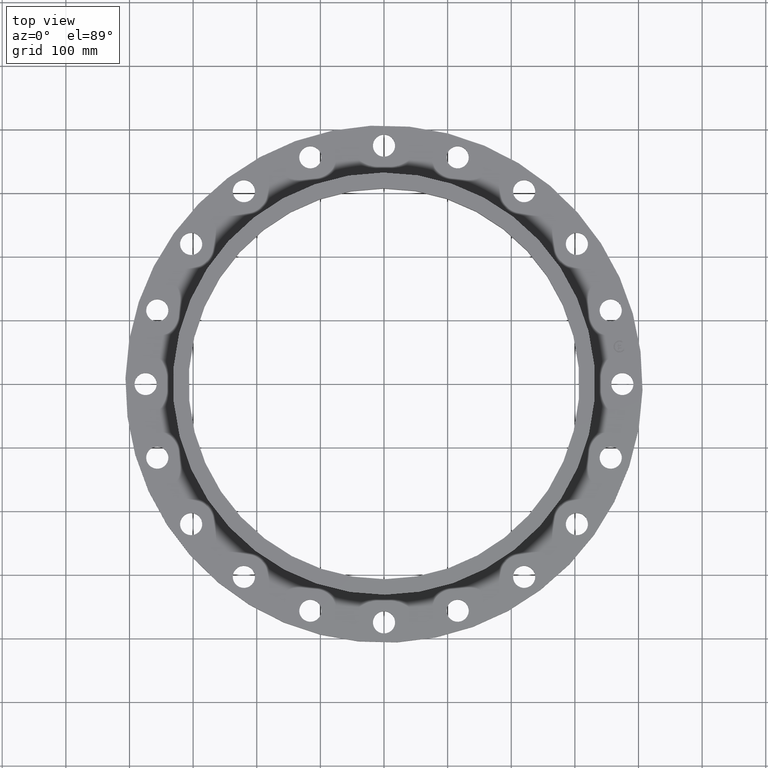
[diagram: clean part render]
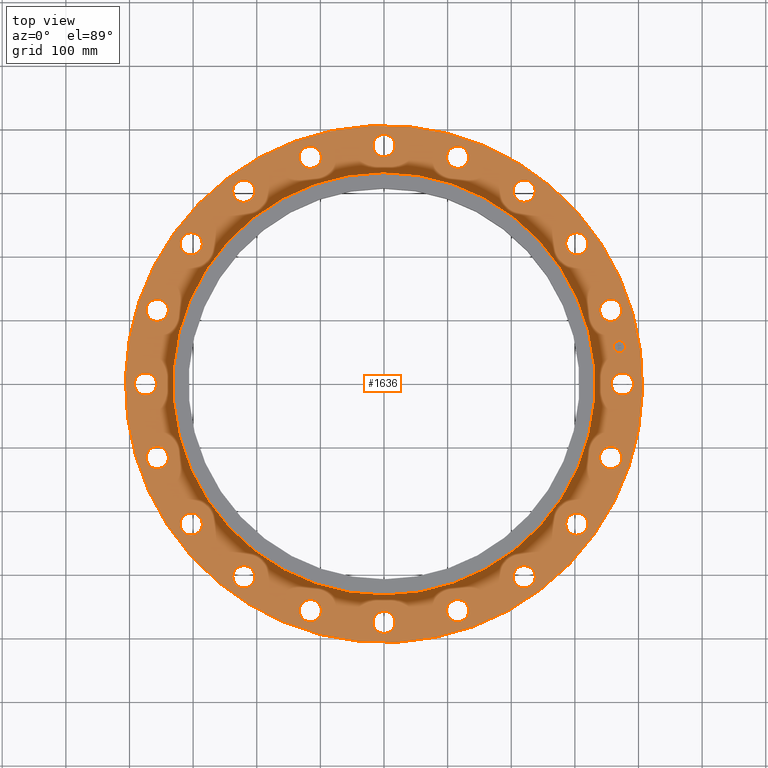
[diagram: same view with one face highlighted and labeled with its STEP entity id]
A machine part, top view. The second image highlights one B-rep face of the part: STEP entity #1636.
In plain terms, the highlighted planar face has unit normal (0, 0, 1).
Its self-contained STEP definition (entity closure, byte-faithful):
#65=AXIS2_PLACEMENT_3D('Circle Axis2P3D',#63,#64,$) ;
#82=AXIS2_PLACEMENT_3D('Circle Axis2P3D',#80,#81,$) ;
#108=AXIS2_PLACEMENT_3D('Circle Axis2P3D',#106,#107,$) ;
#134=AXIS2_PLACEMENT_3D('Circle Axis2P3D',#132,#133,$) ;
#326=AXIS2_PLACEMENT_3D('Circle Axis2P3D',#324,#325,$) ;
#338=AXIS2_PLACEMENT_3D('Circle Axis2P3D',#336,#337,$) ;
#729=AXIS2_PLACEMENT_3D('Circle Axis2P3D',#727,#728,$) ;
#741=AXIS2_PLACEMENT_3D('Circle Axis2P3D',#739,#740,$) ;
#772=AXIS2_PLACEMENT_3D('Circle Axis2P3D',#770,#771,$) ;
#784=AXIS2_PLACEMENT_3D('Circle Axis2P3D',#782,#783,$) ;
#815=AXIS2_PLACEMENT_3D('Circle Axis2P3D',#813,#814,$) ;
#827=AXIS2_PLACEMENT_3D('Circle Axis2P3D',#825,#826,$) ;
#858=AXIS2_PLACEMENT_3D('Circle Axis2P3D',#856,#857,$) ;
#870=AXIS2_PLACEMENT_3D('Circle Axis2P3D',#868,#869,$) ;
#901=AXIS2_PLACEMENT_3D('Circle Axis2P3D',#899,#900,$) ;
#913=AXIS2_PLACEMENT_3D('Circle Axis2P3D',#911,#912,$) ;
#944=AXIS2_PLACEMENT_3D('Circle Axis2P3D',#942,#943,$) ;
#956=AXIS2_PLACEMENT_3D('Circle Axis2P3D',#954,#955,$) ;
#987=AXIS2_PLACEMENT_3D('Circle Axis2P3D',#985,#986,$) ;
#999=AXIS2_PLACEMENT_3D('Circle Axis2P3D',#997,#998,$) ;
#1030=AXIS2_PLACEMENT_3D('Circle Axis2P3D',#1028,#1029,$) ;
#1042=AXIS2_PLACEMENT_3D('Circle Axis2P3D',#1040,#1041,$) ;
#1073=AXIS2_PLACEMENT_3D('Circle Axis2P3D',#1071,#1072,$) ;
#1085=AXIS2_PLACEMENT_3D('Circle Axis2P3D',#1083,#1084,$) ;
#1116=AXIS2_PLACEMENT_3D('Circle Axis2P3D',#1114,#1115,$) ;
#1128=AXIS2_PLACEMENT_3D('Circle Axis2P3D',#1126,#1127,$) ;
#1159=AXIS2_PLACEMENT_3D('Circle Axis2P3D',#1157,#1158,$) ;
#1171=AXIS2_PLACEMENT_3D('Circle Axis2P3D',#1169,#1170,$) ;
#1202=AXIS2_PLACEMENT_3D('Circle Axis2P3D',#1200,#1201,$) ;
#1214=AXIS2_PLACEMENT_3D('Circle Axis2P3D',#1212,#1213,$) ;
#1245=AXIS2_PLACEMENT_3D('Circle Axis2P3D',#1243,#1244,$) ;
#1257=AXIS2_PLACEMENT_3D('Circle Axis2P3D',#1255,#1256,$) ;
#1288=AXIS2_PLACEMENT_3D('Circle Axis2P3D',#1286,#1287,$) ;
#1300=AXIS2_PLACEMENT_3D('Circle Axis2P3D',#1298,#1299,$) ;
#1331=AXIS2_PLACEMENT_3D('Circle Axis2P3D',#1329,#1330,$) ;
#1343=AXIS2_PLACEMENT_3D('Circle Axis2P3D',#1341,#1342,$) ;
#1374=AXIS2_PLACEMENT_3D('Circle Axis2P3D',#1372,#1373,$) ;
#1386=AXIS2_PLACEMENT_3D('Circle Axis2P3D',#1384,#1385,$) ;
#1417=AXIS2_PLACEMENT_3D('Circle Axis2P3D',#1415,#1416,$) ;
#1429=AXIS2_PLACEMENT_3D('Circle Axis2P3D',#1427,#1428,$) ;
#1460=AXIS2_PLACEMENT_3D('Circle Axis2P3D',#1458,#1459,$) ;
#1472=AXIS2_PLACEMENT_3D('Circle Axis2P3D',#1470,#1471,$) ;
#1503=AXIS2_PLACEMENT_3D('Circle Axis2P3D',#1501,#1502,$) ;
#1515=AXIS2_PLACEMENT_3D('Circle Axis2P3D',#1513,#1514,$) ;
#1528=AXIS2_PLACEMENT_3D('Plane Axis2P3D',#1525,#1526,#1527) ;
#1620=AXIS2_PLACEMENT_3D('Circle Axis2P3D',#1618,#1619,$) ;
#1629=AXIS2_PLACEMENT_3D('Circle Axis2P3D',#1627,#1628,$) ;
#46=CARTESIAN_POINT('Vertex',(14.1466619888,0.329605057792,1.)) ;
#60=CARTESIAN_POINT('Vertex',(15.3533380114,-0.329605057792,1.)) ;
#63=CARTESIAN_POINT('Axis2P3D Location',(14.7500000001,0.,1.)) ;
#80=CARTESIAN_POINT('Axis2P3D Location',(14.7500000001,0.,1.)) ;
#103=CARTESIAN_POINT('Vertex',(-7.6708086177,14.0413209903,1.)) ;
#106=CARTESIAN_POINT('Axis2P3D Location',(0.,0.,1.)) ;
#110=CARTESIAN_POINT('Vertex',(7.6708086177,-14.0413209903,1.)) ;
#132=CARTESIAN_POINT('Axis2P3D Location',(0.,0.,1.)) ;
#314=CARTESIAN_POINT('Vertex',(-6.26249609804,11.4634222147,1.)) ;
#321=CARTESIAN_POINT('Vertex',(6.26249609804,-11.4634222147,1.)) ;
#324=CARTESIAN_POINT('Axis2P3D Location',(0.,0.,1.)) ;
#336=CARTESIAN_POINT('Axis2P3D Location',(0.,0.,1.)) ;
#717=CARTESIAN_POINT('Vertex',(13.3524215039,4.68503200622,1.)) ;
#724=CARTESIAN_POINT('Vertex',(14.7037457269,4.43096932788,1.)) ;
#727=CARTESIAN_POINT('Axis2P3D Location',(14.0280836154,4.55800066705,1.)) ;
#739=CARTESIAN_POINT('Axis2P3D Location',(14.0280836154,4.55800066705,1.)) ;
#760=CARTESIAN_POINT('Vertex',(11.2511529705,8.58185537934,1.)) ;
#767=CARTESIAN_POINT('Vertex',(12.6148483636,8.75780956335,1.)) ;
#770=CARTESIAN_POINT('Axis2P3D Location',(11.9330006671,8.66983247135,1.)) ;
#782=CARTESIAN_POINT('Axis2P3D Location',(11.9330006671,8.66983247135,1.)) ;
#803=CARTESIAN_POINT('Vertex',(8.04854319297,11.6386269546,1.)) ;
#810=CARTESIAN_POINT('Vertex',(9.29112174972,12.2273743795,1.)) ;
#813=CARTESIAN_POINT('Axis2P3D Location',(8.66983247135,11.9330006671,1.)) ;
#825=CARTESIAN_POINT('Axis2P3D Location',(8.66983247135,11.9330006671,1.)) ;
#846=CARTESIAN_POINT('Vertex',(4.05808593019,13.5561286325,1.)) ;
#853=CARTESIAN_POINT('Vertex',(5.05791540391,14.5000385983,1.)) ;
#856=CARTESIAN_POINT('Axis2P3D Location',(4.55800066705,14.0280836154,1.)) ;
#868=CARTESIAN_POINT('Axis2P3D Location',(4.55800066705,14.0280836154,1.)) ;
#889=CARTESIAN_POINT('Vertex',(-0.329605057792,14.1466619888,1.)) ;
#896=CARTESIAN_POINT('Vertex',(0.329605057792,15.3533380114,1.)) ;
#899=CARTESIAN_POINT('Axis2P3D Location',(4.17833493703E-015,14.7500000001,1.)) ;
#911=CARTESIAN_POINT('Axis2P3D Location',(4.17833493703E-015,14.7500000001,1.)) ;
#932=CARTESIAN_POINT('Vertex',(-4.68503200622,13.3524215039,1.)) ;
#939=CARTESIAN_POINT('Vertex',(-4.43096932788,14.7037457269,1.)) ;
#942=CARTESIAN_POINT('Axis2P3D Location',(-4.55800066705,14.0280836154,1.)) ;
#954=CARTESIAN_POINT('Axis2P3D Location',(-4.55800066705,14.0280836154,1.)) ;
#975=CARTESIAN_POINT('Vertex',(-8.58185537934,11.2511529705,1.)) ;
#982=CARTESIAN_POINT('Vertex',(-8.75780956335,12.6148483636,1.)) ;
#985=CARTESIAN_POINT('Axis2P3D Location',(-8.66983247135,11.9330006671,1.)) ;
#997=CARTESIAN_POINT('Axis2P3D Location',(-8.66983247135,11.9330006671,1.)) ;
#1018=CARTESIAN_POINT('Vertex',(-11.6386269546,8.04854319297,1.)) ;
#1025=CARTESIAN_POINT('Vertex',(-12.2273743795,9.29112174972,1.)) ;
#1028=CARTESIAN_POINT('Axis2P3D Location',(-11.9330006671,8.66983247135,1.)) ;
#1040=CARTESIAN_POINT('Axis2P3D Location',(-11.9330006671,8.66983247135,1.)) ;
#1061=CARTESIAN_POINT('Vertex',(-13.5561286325,4.05808593019,1.)) ;
#1068=CARTESIAN_POINT('Vertex',(-14.5000385983,5.05791540391,1.)) ;
#1071=CARTESIAN_POINT('Axis2P3D Location',(-14.0280836154,4.55800066705,1.)) ;
#1083=CARTESIAN_POINT('Axis2P3D Location',(-14.0280836154,4.55800066705,1.)) ;
#1104=CARTESIAN_POINT('Vertex',(-14.1466619888,-0.329605057792,1.)) ;
#1111=CARTESIAN_POINT('Vertex',(-15.3533380114,0.329605057792,1.)) ;
#1114=CARTESIAN_POINT('Axis2P3D Location',(-14.7500000001,8.35666987406E-015,1.)) ;
#1126=CARTESIAN_POINT('Axis2P3D Location',(-14.7500000001,8.35666987406E-015,1.)) ;
#1147=CARTESIAN_POINT('Vertex',(-13.3524215039,-4.68503200622,1.)) ;
#1154=CARTESIAN_POINT('Vertex',(-14.7037457269,-4.43096932788,1.)) ;
#1157=CARTESIAN_POINT('Axis2P3D Location',(-14.0280836154,-4.55800066705,1.)) ;
#1169=CARTESIAN_POINT('Axis2P3D Location',(-14.0280836154,-4.55800066705,1.)) ;
#1190=CARTESIAN_POINT('Vertex',(-11.2511529705,-8.58185537934,1.)) ;
#1197=CARTESIAN_POINT('Vertex',(-12.6148483636,-8.75780956335,1.)) ;
#1200=CARTESIAN_POINT('Axis2P3D Location',(-11.9330006671,-8.66983247135,1.)) ;
#1212=CARTESIAN_POINT('Axis2P3D Location',(-11.9330006671,-8.66983247135,1.)) ;
#1233=CARTESIAN_POINT('Vertex',(-8.04854319297,-11.6386269546,1.)) ;
#1240=CARTESIAN_POINT('Vertex',(-9.29112174972,-12.2273743795,1.)) ;
#1243=CARTESIAN_POINT('Axis2P3D Location',(-8.66983247135,-11.9330006671,1.)) ;
#1255=CARTESIAN_POINT('Axis2P3D Location',(-8.66983247135,-11.9330006671,1.)) ;
#1276=CARTESIAN_POINT('Vertex',(-4.05808593019,-13.5561286325,1.)) ;
#1283=CARTESIAN_POINT('Vertex',(-5.05791540391,-14.5000385983,1.)) ;
#1286=CARTESIAN_POINT('Axis2P3D Location',(-4.55800066705,-14.0280836154,1.)) ;
#1298=CARTESIAN_POINT('Axis2P3D Location',(-4.55800066705,-14.0280836154,1.)) ;
#1319=CARTESIAN_POINT('Vertex',(0.329605057792,-14.1466619888,1.)) ;
#1326=CARTESIAN_POINT('Vertex',(-0.329605057792,-15.3533380114,1.)) ;
#1329=CARTESIAN_POINT('Axis2P3D Location',(-1.58101627338E-014,-14.7500000001,1.)) ;
#1341=CARTESIAN_POINT('Axis2P3D Location',(-1.58101627338E-014,-14.7500000001,1.)) ;
#1362=CARTESIAN_POINT('Vertex',(4.68503200622,-13.3524215039,1.)) ;
#1369=CARTESIAN_POINT('Vertex',(4.43096932788,-14.7037457269,1.)) ;
#1372=CARTESIAN_POINT('Axis2P3D Location',(4.55800066705,-14.0280836154,1.)) ;
#1384=CARTESIAN_POINT('Axis2P3D Location',(4.55800066705,-14.0280836154,1.)) ;
#1405=CARTESIAN_POINT('Vertex',(8.58185537934,-11.2511529705,1.)) ;
#1412=CARTESIAN_POINT('Vertex',(8.75780956335,-12.6148483636,1.)) ;
#1415=CARTESIAN_POINT('Axis2P3D Location',(8.66983247135,-11.9330006671,1.)) ;
#1427=CARTESIAN_POINT('Axis2P3D Location',(8.66983247135,-11.9330006671,1.)) ;
#1448=CARTESIAN_POINT('Vertex',(11.6386269546,-8.04854319297,1.)) ;
#1455=CARTESIAN_POINT('Vertex',(12.2273743795,-9.29112174972,1.)) ;
#1458=CARTESIAN_POINT('Axis2P3D Location',(11.9330006671,-8.66983247135,1.)) ;
#1470=CARTESIAN_POINT('Axis2P3D Location',(11.9330006671,-8.66983247135,1.)) ;
#1491=CARTESIAN_POINT('Vertex',(13.5561286325,-4.05808593019,1.)) ;
#1498=CARTESIAN_POINT('Vertex',(14.5000385983,-5.05791540391,1.)) ;
#1501=CARTESIAN_POINT('Axis2P3D Location',(14.0280836154,-4.55800066705,1.)) ;
#1513=CARTESIAN_POINT('Axis2P3D Location',(14.0280836154,-4.55800066705,1.)) ;
#1525=CARTESIAN_POINT('Axis2P3D Location',(0.,13.0625000001,1.)) ;
#1618=CARTESIAN_POINT('Axis2P3D Location',(14.5684030238,2.30740835935,1.)) ;
#1622=CARTESIAN_POINT('Vertex',(14.5097400994,2.67779148708,1.)) ;
#1624=CARTESIAN_POINT('Vertex',(14.6270659482,1.93702523163,1.)) ;
#1627=CARTESIAN_POINT('Axis2P3D Location',(14.5684030238,2.30740835935,1.)) ;
#64=DIRECTION('Axis2P3D Direction',(0.,-0.,-0.0393700787402)) ;
#81=DIRECTION('Axis2P3D Direction',(0.,-0.,-0.0393700787402)) ;
#107=DIRECTION('Axis2P3D Direction',(0.,0.,0.0393700787402)) ;
#133=DIRECTION('Axis2P3D Direction',(0.,0.,0.0393700787402)) ;
#325=DIRECTION('Axis2P3D Direction',(0.,0.,0.0393700787402)) ;
#337=DIRECTION('Axis2P3D Direction',(0.,0.,0.0393700787402)) ;
#728=DIRECTION('Axis2P3D Direction',(0.,0.,-0.0393700787402)) ;
#740=DIRECTION('Axis2P3D Direction',(0.,0.,-0.0393700787402)) ;
#771=DIRECTION('Axis2P3D Direction',(0.,0.,-0.0393700787402)) ;
#783=DIRECTION('Axis2P3D Direction',(0.,0.,-0.0393700787402)) ;
#814=DIRECTION('Axis2P3D Direction',(0.,0.,-0.0393700787402)) ;
#826=DIRECTION('Axis2P3D Direction',(0.,0.,-0.0393700787402)) ;
#857=DIRECTION('Axis2P3D Direction',(0.,0.,-0.0393700787402)) ;
#869=DIRECTION('Axis2P3D Direction',(0.,0.,-0.0393700787402)) ;
#900=DIRECTION('Axis2P3D Direction',(0.,0.,-0.0393700787402)) ;
#912=DIRECTION('Axis2P3D Direction',(0.,0.,-0.0393700787402)) ;
#943=DIRECTION('Axis2P3D Direction',(0.,0.,-0.0393700787402)) ;
#955=DIRECTION('Axis2P3D Direction',(0.,0.,-0.0393700787402)) ;
#986=DIRECTION('Axis2P3D Direction',(0.,0.,-0.0393700787402)) ;
#998=DIRECTION('Axis2P3D Direction',(0.,0.,-0.0393700787402)) ;
#1029=DIRECTION('Axis2P3D Direction',(0.,0.,-0.0393700787402)) ;
#1041=DIRECTION('Axis2P3D Direction',(0.,0.,-0.0393700787402)) ;
#1072=DIRECTION('Axis2P3D Direction',(0.,0.,-0.0393700787402)) ;
#1084=DIRECTION('Axis2P3D Direction',(0.,0.,-0.0393700787402)) ;
#1115=DIRECTION('Axis2P3D Direction',(0.,0.,-0.0393700787402)) ;
#1127=DIRECTION('Axis2P3D Direction',(0.,0.,-0.0393700787402)) ;
#1158=DIRECTION('Axis2P3D Direction',(-0.,0.,-0.0393700787402)) ;
#1170=DIRECTION('Axis2P3D Direction',(-0.,0.,-0.0393700787402)) ;
#1201=DIRECTION('Axis2P3D Direction',(-0.,0.,-0.0393700787402)) ;
#1213=DIRECTION('Axis2P3D Direction',(-0.,0.,-0.0393700787402)) ;
#1244=DIRECTION('Axis2P3D Direction',(-0.,0.,-0.0393700787402)) ;
#1256=DIRECTION('Axis2P3D Direction',(-0.,0.,-0.0393700787402)) ;
#1287=DIRECTION('Axis2P3D Direction',(-0.,0.,-0.0393700787402)) ;
#1299=DIRECTION('Axis2P3D Direction',(-0.,0.,-0.0393700787402)) ;
#1330=DIRECTION('Axis2P3D Direction',(-0.,0.,-0.0393700787402)) ;
#1342=DIRECTION('Axis2P3D Direction',(-0.,0.,-0.0393700787402)) ;
#1373=DIRECTION('Axis2P3D Direction',(0.,-0.,-0.0393700787402)) ;
#1385=DIRECTION('Axis2P3D Direction',(0.,-0.,-0.0393700787402)) ;
#1416=DIRECTION('Axis2P3D Direction',(0.,-0.,-0.0393700787402)) ;
#1428=DIRECTION('Axis2P3D Direction',(0.,-0.,-0.0393700787402)) ;
#1459=DIRECTION('Axis2P3D Direction',(0.,-0.,-0.0393700787402)) ;
#1471=DIRECTION('Axis2P3D Direction',(0.,-0.,-0.0393700787402)) ;
#1502=DIRECTION('Axis2P3D Direction',(0.,-0.,-0.0393700787402)) ;
#1514=DIRECTION('Axis2P3D Direction',(0.,-0.,-0.0393700787402)) ;
#1526=DIRECTION('Axis2P3D Direction',(0.,0.,0.0393700787402)) ;
#1527=DIRECTION('Axis2P3D XDirection',(0.0393700787402,0.,0.)) ;
#1619=DIRECTION('Axis2P3D Direction',(0.,0.,0.0393700787402)) ;
#1628=DIRECTION('Axis2P3D Direction',(0.,0.,0.0393700787402)) ;
#1531=ORIENTED_EDGE('',*,*,#112,.T.) ;
#1532=ORIENTED_EDGE('',*,*,#136,.T.) ;
#1535=ORIENTED_EDGE('',*,*,#84,.F.) ;
#1536=ORIENTED_EDGE('',*,*,#67,.F.) ;
#1539=ORIENTED_EDGE('',*,*,#340,.F.) ;
#1540=ORIENTED_EDGE('',*,*,#328,.F.) ;
#1543=ORIENTED_EDGE('',*,*,#731,.F.) ;
#1544=ORIENTED_EDGE('',*,*,#743,.F.) ;
#1547=ORIENTED_EDGE('',*,*,#774,.F.) ;
#1548=ORIENTED_EDGE('',*,*,#786,.F.) ;
#1551=ORIENTED_EDGE('',*,*,#817,.F.) ;
#1552=ORIENTED_EDGE('',*,*,#829,.F.) ;
#1555=ORIENTED_EDGE('',*,*,#860,.F.) ;
#1556=ORIENTED_EDGE('',*,*,#872,.F.) ;
#1559=ORIENTED_EDGE('',*,*,#903,.F.) ;
#1560=ORIENTED_EDGE('',*,*,#915,.F.) ;
#1563=ORIENTED_EDGE('',*,*,#946,.F.) ;
#1564=ORIENTED_EDGE('',*,*,#958,.F.) ;
#1567=ORIENTED_EDGE('',*,*,#989,.F.) ;
#1568=ORIENTED_EDGE('',*,*,#1001,.F.) ;
#1571=ORIENTED_EDGE('',*,*,#1032,.F.) ;
#1572=ORIENTED_EDGE('',*,*,#1044,.F.) ;
#1575=ORIENTED_EDGE('',*,*,#1075,.F.) ;
#1576=ORIENTED_EDGE('',*,*,#1087,.F.) ;
#1579=ORIENTED_EDGE('',*,*,#1118,.F.) ;
#1580=ORIENTED_EDGE('',*,*,#1130,.F.) ;
#1583=ORIENTED_EDGE('',*,*,#1161,.F.) ;
#1584=ORIENTED_EDGE('',*,*,#1173,.F.) ;
#1587=ORIENTED_EDGE('',*,*,#1204,.F.) ;
#1588=ORIENTED_EDGE('',*,*,#1216,.F.) ;
#1591=ORIENTED_EDGE('',*,*,#1247,.F.) ;
#1592=ORIENTED_EDGE('',*,*,#1259,.F.) ;
#1595=ORIENTED_EDGE('',*,*,#1290,.F.) ;
#1596=ORIENTED_EDGE('',*,*,#1302,.F.) ;
#1599=ORIENTED_EDGE('',*,*,#1333,.F.) ;
#1600=ORIENTED_EDGE('',*,*,#1345,.F.) ;
#1603=ORIENTED_EDGE('',*,*,#1376,.F.) ;
#1604=ORIENTED_EDGE('',*,*,#1388,.F.) ;
#1607=ORIENTED_EDGE('',*,*,#1419,.F.) ;
#1608=ORIENTED_EDGE('',*,*,#1431,.F.) ;
#1611=ORIENTED_EDGE('',*,*,#1462,.F.) ;
#1612=ORIENTED_EDGE('',*,*,#1474,.F.) ;
#1615=ORIENTED_EDGE('',*,*,#1505,.F.) ;
#1616=ORIENTED_EDGE('',*,*,#1517,.F.) ;
#1633=ORIENTED_EDGE('',*,*,#1626,.F.) ;
#1634=ORIENTED_EDGE('',*,*,#1631,.F.) ;
#1537=FACE_BOUND('',#1534,.T.) ;
#1541=FACE_BOUND('',#1538,.T.) ;
#1545=FACE_BOUND('',#1542,.T.) ;
#1549=FACE_BOUND('',#1546,.T.) ;
#1553=FACE_BOUND('',#1550,.T.) ;
#1557=FACE_BOUND('',#1554,.T.) ;
#1561=FACE_BOUND('',#1558,.T.) ;
#1565=FACE_BOUND('',#1562,.T.) ;
#1569=FACE_BOUND('',#1566,.T.) ;
#1573=FACE_BOUND('',#1570,.T.) ;
#1577=FACE_BOUND('',#1574,.T.) ;
#1581=FACE_BOUND('',#1578,.T.) ;
#1585=FACE_BOUND('',#1582,.T.) ;
#1589=FACE_BOUND('',#1586,.T.) ;
#1593=FACE_BOUND('',#1590,.T.) ;
#1597=FACE_BOUND('',#1594,.T.) ;
#1601=FACE_BOUND('',#1598,.T.) ;
#1605=FACE_BOUND('',#1602,.T.) ;
#1609=FACE_BOUND('',#1606,.T.) ;
#1613=FACE_BOUND('',#1610,.T.) ;
#1617=FACE_BOUND('',#1614,.T.) ;
#1635=FACE_BOUND('',#1632,.T.) ;
#1636=ADVANCED_FACE('PartBody',(#1533,#1537,#1541,#1545,#1549,#1553,#1557,#1561,#1565,#1569,#1573,#1577,#1581,#1585,#1589,#1593,#1597,#1601,#1605,#1609,#1613,#1617,#1635),#1529,.T.) ;
#66=CIRCLE('generated circle',#65,0.687500000003) ;
#83=CIRCLE('generated circle',#82,0.687500000003) ;
#109=CIRCLE('generated circle',#108,16.0000000001) ;
#135=CIRCLE('generated circle',#134,16.0000000001) ;
#327=CIRCLE('generated circle',#326,13.0625000001) ;
#339=CIRCLE('generated circle',#338,13.0625000001) ;
#730=CIRCLE('generated circle',#729,0.687500000003) ;
#742=CIRCLE('generated circle',#741,0.687500000003) ;
#773=CIRCLE('generated circle',#772,0.687500000003) ;
#785=CIRCLE('generated circle',#784,0.687500000003) ;
#816=CIRCLE('generated circle',#815,0.687500000003) ;
#828=CIRCLE('generated circle',#827,0.687500000003) ;
#859=CIRCLE('generated circle',#858,0.687500000003) ;
#871=CIRCLE('generated circle',#870,0.687500000003) ;
#902=CIRCLE('generated circle',#901,0.687500000003) ;
#914=CIRCLE('generated circle',#913,0.687500000003) ;
#945=CIRCLE('generated circle',#944,0.687500000003) ;
#957=CIRCLE('generated circle',#956,0.687500000003) ;
#988=CIRCLE('generated circle',#987,0.687500000003) ;
#1000=CIRCLE('generated circle',#999,0.687500000003) ;
#1031=CIRCLE('generated circle',#1030,0.687500000003) ;
#1043=CIRCLE('generated circle',#1042,0.687500000003) ;
#1074=CIRCLE('generated circle',#1073,0.687500000003) ;
#1086=CIRCLE('generated circle',#1085,0.687500000003) ;
#1117=CIRCLE('generated circle',#1116,0.687500000003) ;
#1129=CIRCLE('generated circle',#1128,0.687500000003) ;
#1160=CIRCLE('generated circle',#1159,0.687500000003) ;
#1172=CIRCLE('generated circle',#1171,0.687500000003) ;
#1203=CIRCLE('generated circle',#1202,0.687500000003) ;
#1215=CIRCLE('generated circle',#1214,0.687500000003) ;
#1246=CIRCLE('generated circle',#1245,0.687500000003) ;
#1258=CIRCLE('generated circle',#1257,0.687500000003) ;
#1289=CIRCLE('generated circle',#1288,0.687500000003) ;
#1301=CIRCLE('generated circle',#1300,0.687500000003) ;
#1332=CIRCLE('generated circle',#1331,0.687500000003) ;
#1344=CIRCLE('generated circle',#1343,0.687500000003) ;
#1375=CIRCLE('generated circle',#1374,0.687500000003) ;
#1387=CIRCLE('generated circle',#1386,0.687500000003) ;
#1418=CIRCLE('generated circle',#1417,0.687500000003) ;
#1430=CIRCLE('generated circle',#1429,0.687500000003) ;
#1461=CIRCLE('generated circle',#1460,0.687500000003) ;
#1473=CIRCLE('generated circle',#1472,0.687500000003) ;
#1504=CIRCLE('generated circle',#1503,0.687500000003) ;
#1516=CIRCLE('generated circle',#1515,0.687500000003) ;
#1621=CIRCLE('generated circle',#1620,0.375000000002) ;
#1630=CIRCLE('generated circle',#1629,0.375000000002) ;
#67=EDGE_CURVE('',#61,#47,#66,.F.) ;
#84=EDGE_CURVE('',#47,#61,#83,.F.) ;
#112=EDGE_CURVE('',#111,#104,#109,.T.) ;
#136=EDGE_CURVE('',#104,#111,#135,.T.) ;
#328=EDGE_CURVE('',#322,#315,#327,.T.) ;
#340=EDGE_CURVE('',#315,#322,#339,.T.) ;
#731=EDGE_CURVE('',#725,#718,#730,.F.) ;
#743=EDGE_CURVE('',#718,#725,#742,.F.) ;
#774=EDGE_CURVE('',#768,#761,#773,.F.) ;
#786=EDGE_CURVE('',#761,#768,#785,.F.) ;
#817=EDGE_CURVE('',#811,#804,#816,.F.) ;
#829=EDGE_CURVE('',#804,#811,#828,.F.) ;
#860=EDGE_CURVE('',#854,#847,#859,.F.) ;
#872=EDGE_CURVE('',#847,#854,#871,.F.) ;
#903=EDGE_CURVE('',#897,#890,#902,.F.) ;
#915=EDGE_CURVE('',#890,#897,#914,.F.) ;
#946=EDGE_CURVE('',#940,#933,#945,.F.) ;
#958=EDGE_CURVE('',#933,#940,#957,.F.) ;
#989=EDGE_CURVE('',#983,#976,#988,.F.) ;
#1001=EDGE_CURVE('',#976,#983,#1000,.F.) ;
#1032=EDGE_CURVE('',#1026,#1019,#1031,.F.) ;
#1044=EDGE_CURVE('',#1019,#1026,#1043,.F.) ;
#1075=EDGE_CURVE('',#1069,#1062,#1074,.F.) ;
#1087=EDGE_CURVE('',#1062,#1069,#1086,.F.) ;
#1118=EDGE_CURVE('',#1112,#1105,#1117,.F.) ;
#1130=EDGE_CURVE('',#1105,#1112,#1129,.F.) ;
#1161=EDGE_CURVE('',#1155,#1148,#1160,.F.) ;
#1173=EDGE_CURVE('',#1148,#1155,#1172,.F.) ;
#1204=EDGE_CURVE('',#1198,#1191,#1203,.F.) ;
#1216=EDGE_CURVE('',#1191,#1198,#1215,.F.) ;
#1247=EDGE_CURVE('',#1241,#1234,#1246,.F.) ;
#1259=EDGE_CURVE('',#1234,#1241,#1258,.F.) ;
#1290=EDGE_CURVE('',#1284,#1277,#1289,.F.) ;
#1302=EDGE_CURVE('',#1277,#1284,#1301,.F.) ;
#1333=EDGE_CURVE('',#1327,#1320,#1332,.F.) ;
#1345=EDGE_CURVE('',#1320,#1327,#1344,.F.) ;
#1376=EDGE_CURVE('',#1370,#1363,#1375,.F.) ;
#1388=EDGE_CURVE('',#1363,#1370,#1387,.F.) ;
#1419=EDGE_CURVE('',#1413,#1406,#1418,.F.) ;
#1431=EDGE_CURVE('',#1406,#1413,#1430,.F.) ;
#1462=EDGE_CURVE('',#1456,#1449,#1461,.F.) ;
#1474=EDGE_CURVE('',#1449,#1456,#1473,.F.) ;
#1505=EDGE_CURVE('',#1499,#1492,#1504,.F.) ;
#1517=EDGE_CURVE('',#1492,#1499,#1516,.F.) ;
#1626=EDGE_CURVE('',#1623,#1625,#1621,.T.) ;
#1631=EDGE_CURVE('',#1625,#1623,#1630,.T.) ;
#1530=EDGE_LOOP('',(#1531,#1532)) ;
#1534=EDGE_LOOP('',(#1535,#1536)) ;
#1538=EDGE_LOOP('',(#1539,#1540)) ;
#1542=EDGE_LOOP('',(#1543,#1544)) ;
#1546=EDGE_LOOP('',(#1547,#1548)) ;
#1550=EDGE_LOOP('',(#1551,#1552)) ;
#1554=EDGE_LOOP('',(#1555,#1556)) ;
#1558=EDGE_LOOP('',(#1559,#1560)) ;
#1562=EDGE_LOOP('',(#1563,#1564)) ;
#1566=EDGE_LOOP('',(#1567,#1568)) ;
#1570=EDGE_LOOP('',(#1571,#1572)) ;
#1574=EDGE_LOOP('',(#1575,#1576)) ;
#1578=EDGE_LOOP('',(#1579,#1580)) ;
#1582=EDGE_LOOP('',(#1583,#1584)) ;
#1586=EDGE_LOOP('',(#1587,#1588)) ;
#1590=EDGE_LOOP('',(#1591,#1592)) ;
#1594=EDGE_LOOP('',(#1595,#1596)) ;
#1598=EDGE_LOOP('',(#1599,#1600)) ;
#1602=EDGE_LOOP('',(#1603,#1604)) ;
#1606=EDGE_LOOP('',(#1607,#1608)) ;
#1610=EDGE_LOOP('',(#1611,#1612)) ;
#1614=EDGE_LOOP('',(#1615,#1616)) ;
#1632=EDGE_LOOP('',(#1633,#1634)) ;
#1533=FACE_OUTER_BOUND('',#1530,.T.) ;
#1529=PLANE('',#1528) ;
#47=VERTEX_POINT('',#46) ;
#61=VERTEX_POINT('',#60) ;
#104=VERTEX_POINT('',#103) ;
#111=VERTEX_POINT('',#110) ;
#315=VERTEX_POINT('',#314) ;
#322=VERTEX_POINT('',#321) ;
#718=VERTEX_POINT('',#717) ;
#725=VERTEX_POINT('',#724) ;
#761=VERTEX_POINT('',#760) ;
#768=VERTEX_POINT('',#767) ;
#804=VERTEX_POINT('',#803) ;
#811=VERTEX_POINT('',#810) ;
#847=VERTEX_POINT('',#846) ;
#854=VERTEX_POINT('',#853) ;
#890=VERTEX_POINT('',#889) ;
#897=VERTEX_POINT('',#896) ;
#933=VERTEX_POINT('',#932) ;
#940=VERTEX_POINT('',#939) ;
#976=VERTEX_POINT('',#975) ;
#983=VERTEX_POINT('',#982) ;
#1019=VERTEX_POINT('',#1018) ;
#1026=VERTEX_POINT('',#1025) ;
#1062=VERTEX_POINT('',#1061) ;
#1069=VERTEX_POINT('',#1068) ;
#1105=VERTEX_POINT('',#1104) ;
#1112=VERTEX_POINT('',#1111) ;
#1148=VERTEX_POINT('',#1147) ;
#1155=VERTEX_POINT('',#1154) ;
#1191=VERTEX_POINT('',#1190) ;
#1198=VERTEX_POINT('',#1197) ;
#1234=VERTEX_POINT('',#1233) ;
#1241=VERTEX_POINT('',#1240) ;
#1277=VERTEX_POINT('',#1276) ;
#1284=VERTEX_POINT('',#1283) ;
#1320=VERTEX_POINT('',#1319) ;
#1327=VERTEX_POINT('',#1326) ;
#1363=VERTEX_POINT('',#1362) ;
#1370=VERTEX_POINT('',#1369) ;
#1406=VERTEX_POINT('',#1405) ;
#1413=VERTEX_POINT('',#1412) ;
#1449=VERTEX_POINT('',#1448) ;
#1456=VERTEX_POINT('',#1455) ;
#1492=VERTEX_POINT('',#1491) ;
#1499=VERTEX_POINT('',#1498) ;
#1623=VERTEX_POINT('',#1622) ;
#1625=VERTEX_POINT('',#1624) ;